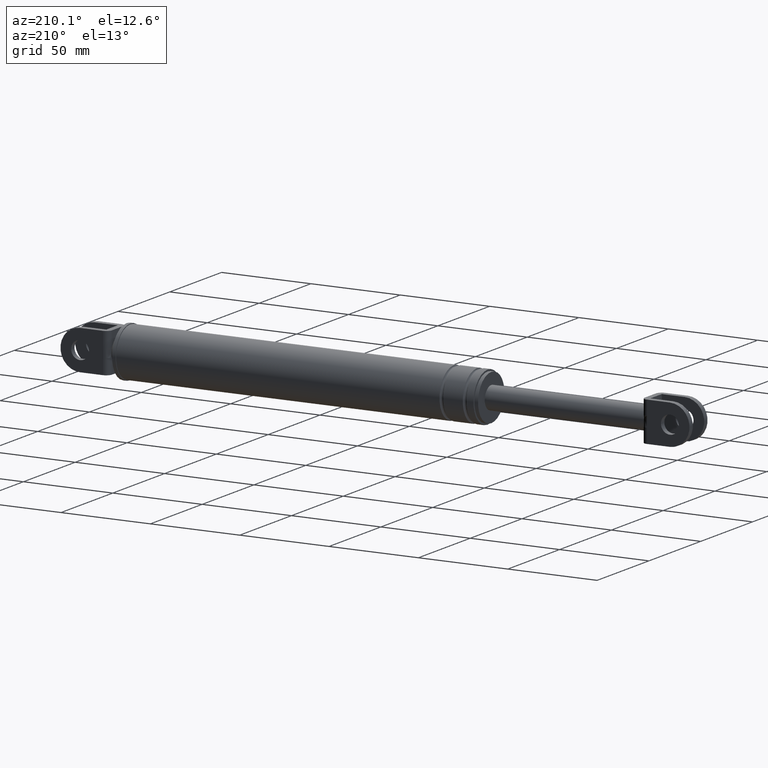
[diagram: clean part render]
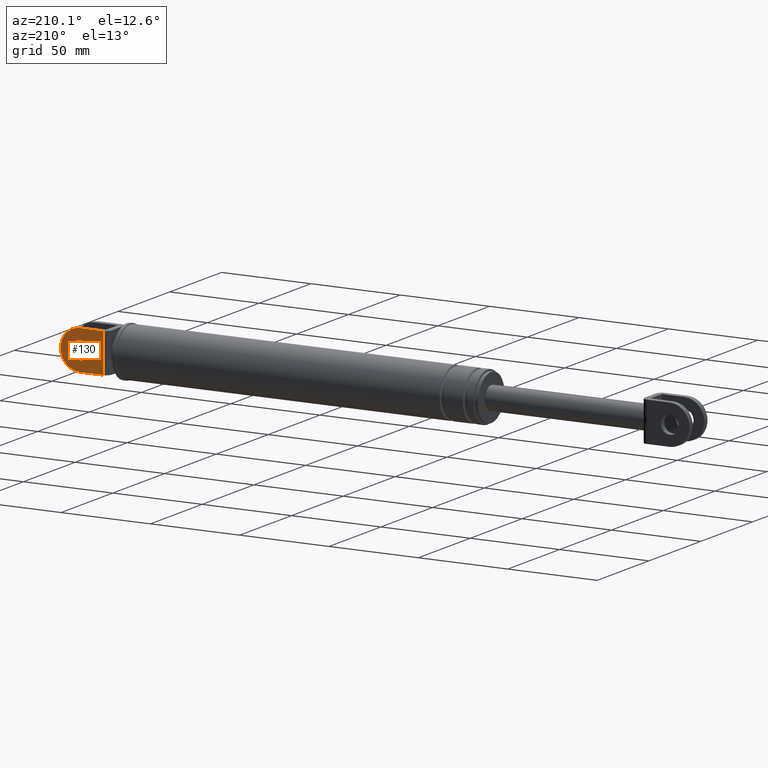
[diagram: same view with one face highlighted and labeled with its STEP entity id]
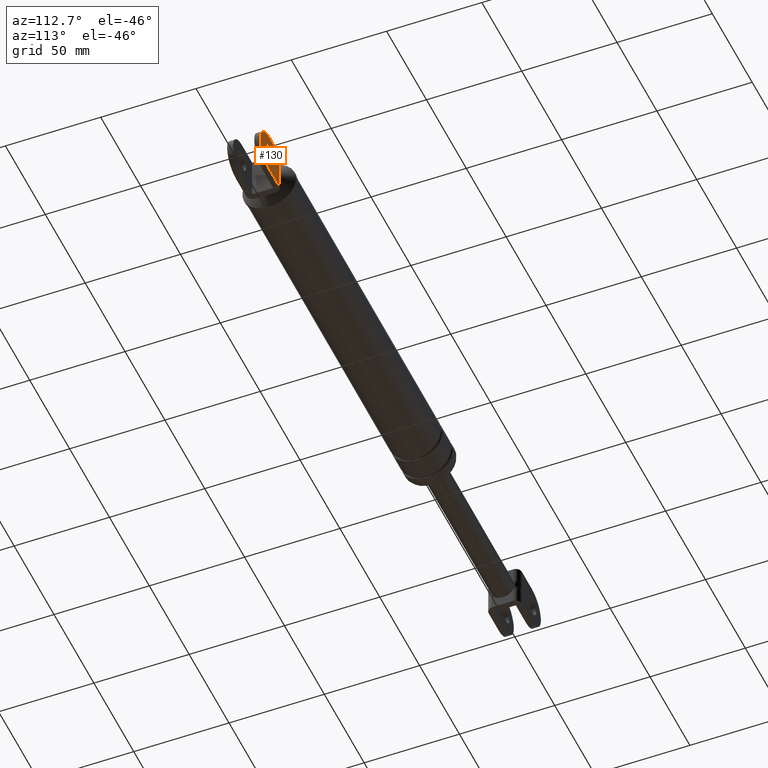
[diagram: same view with one face highlighted and labeled with its STEP entity id]
A machine part, auxiliary view. The second image highlights one B-rep face of the part: STEP entity #130.
A second angle (auxiliary view) of the same face is appended — the face is thin or edge-on in the first view.
In plain terms, the highlighted planar face has unit normal (0, 1, 0).
Its self-contained STEP definition (entity closure, byte-faithful):
#130=ADVANCED_FACE('',(#361,#362),#360,.T.);
#360=PLANE('',#1331);
#361=FACE_OUTER_BOUND('',#1332,.T.);
#362=FACE_BOUND('',#1333,.T.);
#1328=CARTESIAN_POINT('',(3.63950805697E+002,8.69999700000E+000,2.03572913337E+002));
#1329=DIRECTION('',(-0.00000000000E+000,1.00000000000E+000,0.00000000000E+000));
#1330=DIRECTION('',(1.00000000000E+000,0.00000000000E+000,0.00000000000E+000));
#1331=AXIS2_PLACEMENT_3D('',#1328,#1329,#1330);
#1332=EDGE_LOOP('',(#2017,#2018,#2019,#2020,#2021,#2022));
#1333=EDGE_LOOP('',(#2023,#2024));
#2017=ORIENTED_EDGE('',*,*,#2293,.T.);
#2018=ORIENTED_EDGE('',*,*,#2262,.T.);
#2019=ORIENTED_EDGE('',*,*,#2259,.T.);
#2020=ORIENTED_EDGE('',*,*,#2300,.T.);
#2021=ORIENTED_EDGE('',*,*,#2288,.F.);
#2022=ORIENTED_EDGE('',*,*,#2299,.F.);
#2023=ORIENTED_EDGE('',*,*,#2301,.T.);
#2024=ORIENTED_EDGE('',*,*,#2302,.T.);
#2259=EDGE_CURVE('',#2502,#2516,#2523,.T.);
#2262=EDGE_CURVE('',#2530,#2502,#2543,.T.);
#2288=EDGE_CURVE('',#2718,#2719,#2720,.T.);
#2293=EDGE_CURVE('',#2750,#2530,#2751,.T.);
#2299=EDGE_CURVE('',#2750,#2718,#2789,.T.);
#2300=EDGE_CURVE('',#2516,#2719,#2795,.T.);
#2301=EDGE_CURVE('',#2801,#2802,#2803,.T.);
#2302=EDGE_CURVE('',#2802,#2801,#2809,.T.);
#2502=VERTEX_POINT('',#3498);
#2516=VERTEX_POINT('',#3508);
#2523=(BOUNDED_CURVE() B_SPLINE_CURVE(3,(#3513,#3514,#3515,#3516,#3517,#3518,#3519,#3520,#3521,#3522),.UNSPECIFIED.,.F.,.F.) B_SPLINE_CURVE_WITH_KNOTS((4,2,2,2,4),(0.00000000000E+000,1.19940700729E-003,2.39881401459E-003,3.59822102188E-003,4.79762802917E-003),.UNSPECIFIED.) CURVE() GEOMETRIC_REPRESENTATION_ITEM() RATIONAL_B_SPLINE_CURVE((1.00000000000E+000,1.00000000000E+000,1.00000000000E+000,1.00000000000E+000,1.00000000000E+000,1.00000000000E+000,1.00000000000E+000,1.00000000000E+000,1.00000000000E+000,1.00000000000E+000)) REPRESENTATION_ITEM('') );
#2530=VERTEX_POINT('',#3524);
#2543=LINE('',#3532,#3533);
#2718=VERTEX_POINT('',#3653);
#2719=VERTEX_POINT('',#3654);
#2720=LINE('',#3655,#3656);
#2750=VERTEX_POINT('',#3671);
#2751=LINE('',#3672,#3673);
#2789=CIRCLE('',#3697,1.10000000000E+001);
#2795=LINE('',#3698,#3699);
#2801=VERTEX_POINT('',#3701);
#2802=VERTEX_POINT('',#3702);
#2803=CIRCLE('',#3706,5.00000000000E+000);
#2809=CIRCLE('',#3710,5.00000000000E+000);
#3498=CARTESIAN_POINT('',(3.66374045421E+002,8.69999700000E+000,1.87974989542E+002));
#3508=CARTESIAN_POINT('',(3.66374045421E+002,8.69999700000E+000,1.92770834827E+002));
#3513=CARTESIAN_POINT('',(3.66374045421E+002,8.69999700000E+000,1.87974989542E+002));
#3514=CARTESIAN_POINT('',(3.66374045421E+002,8.69999700000E+000,1.88374865670E+002));
#3515=CARTESIAN_POINT('',(3.66362410726E+002,8.69999700000E+000,1.88774518249E+002));
#3516=CARTESIAN_POINT('',(3.66342547254E+002,8.69999700000E+000,1.89573888848E+002));
#3517=CARTESIAN_POINT('',(3.66334736581E+002,8.69999700000E+000,1.89973647055E+002));
#3518=CARTESIAN_POINT('',(3.66334745568E+002,8.69999700000E+000,1.90772959135E+002));
#3519=CARTESIAN_POINT('',(3.66342561150E+002,8.69999700000E+000,1.91172534731E+002));
#3520=CARTESIAN_POINT('',(3.66362420076E+002,8.69999700000E+000,1.91971642381E+002));
#3521=CARTESIAN_POINT('',(3.66374045421E+002,8.69999700000E+000,1.92371178741E+002));
#3522=CARTESIAN_POINT('',(3.66374045421E+002,8.69999700000E+000,1.92770834827E+002));
#3524=CARTESIAN_POINT('',(3.66374045421E+002,8.69999700000E+000,1.79372912185E+002));
#3532=CARTESIAN_POINT('',(3.66374045421E+002,8.69999700000E+000,1.79372912185E+002));
#3533=VECTOR('',#3534,8.60207735738E+000);
#3534=DIRECTION('',(0.00000000000E+000,0.00000000000E+000,1.00000000000E+000));
#3653=CARTESIAN_POINT('',(3.79174044462E+002,8.69999700000E+000,2.01372912185E+002));
#3654=CARTESIAN_POINT('',(3.66374045421E+002,8.69999700000E+000,2.01372912185E+002));
#3655=CARTESIAN_POINT('',(3.79174044462E+002,8.69999700000E+000,2.01372912185E+002));
#3656=VECTOR('',#3657,1.27999990401E+001);
#3657=DIRECTION('',(-1.00000000000E+000,0.00000000000E+000,0.00000000000E+000));
#3671=CARTESIAN_POINT('',(3.79174044462E+002,8.69999700000E+000,1.79372912185E+002));
#3672=CARTESIAN_POINT('',(3.79174044462E+002,8.69999700000E+000,1.79372912185E+002));
#3673=VECTOR('',#3674,1.27999990401E+001);
#3674=DIRECTION('',(-1.00000000000E+000,0.00000000000E+000,0.00000000000E+000));
#3694=CARTESIAN_POINT('',(3.79174045421E+002,8.69999700000E+000,1.90372912185E+002));
#3695=DIRECTION('',(0.00000000000E+000,-1.00000000000E+000,-0.00000000000E+000));
#3696=DIRECTION('',(-8.72664508346E-008,0.00000000000E+000,-1.00000000000E+000));
#3697=AXIS2_PLACEMENT_3D('',#3694,#3695,#3696);
#3698=CARTESIAN_POINT('',(3.66374045421E+002,8.69999700000E+000,1.92770834827E+002));
#3699=VECTOR('',#3700,8.60207735738E+000);
#3700=DIRECTION('',(0.00000000000E+000,0.00000000000E+000,1.00000000000E+000));
#3701=CARTESIAN_POINT('',(3.79174045421E+002,8.69999700000E+000,1.85372912185E+002));
#3702=CARTESIAN_POINT('',(3.79174045421E+002,8.69999700000E+000,1.95372912185E+002));
#3703=CARTESIAN_POINT('',(3.79174045421E+002,8.69999700000E+000,1.90372912185E+002));
#3704=DIRECTION('',(-1.25607396695E-016,-1.00000000000E+000,0.00000000000E+000));
#3705=DIRECTION('',(-0.00000000000E+000,-0.00000000000E+000,-1.00000000000E+000));
#3706=AXIS2_PLACEMENT_3D('',#3703,#3704,#3705);
#3707=CARTESIAN_POINT('',(3.79174045421E+002,8.69999700000E+000,1.90372912185E+002));
#3708=DIRECTION('',(-1.25607396695E-016,-1.00000000000E+000,0.00000000000E+000));
#3709=DIRECTION('',(-0.00000000000E+000,-0.00000000000E+000,-1.00000000000E+000));
#3710=AXIS2_PLACEMENT_3D('',#3707,#3708,#3709);